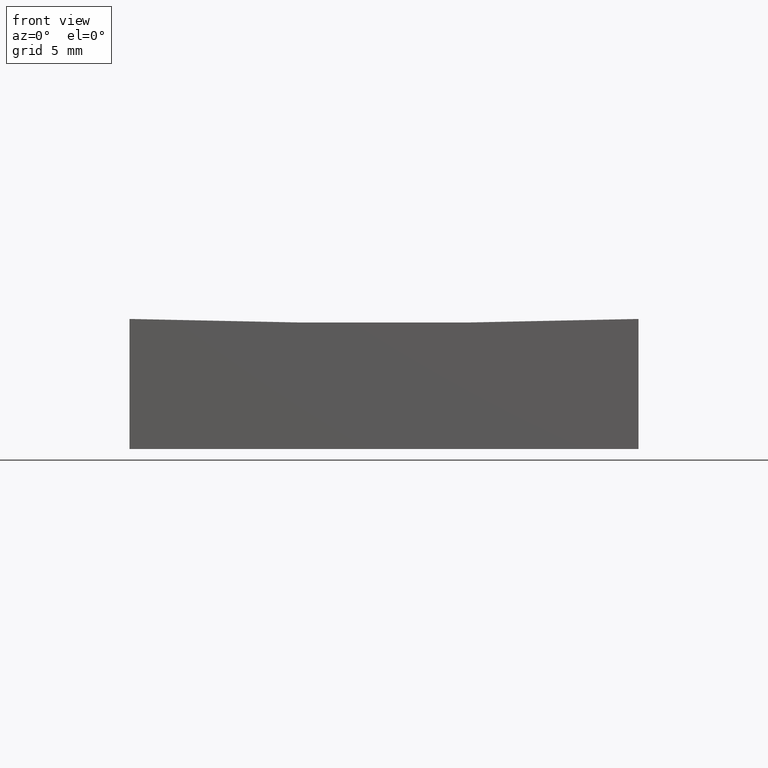
[diagram: clean part render]
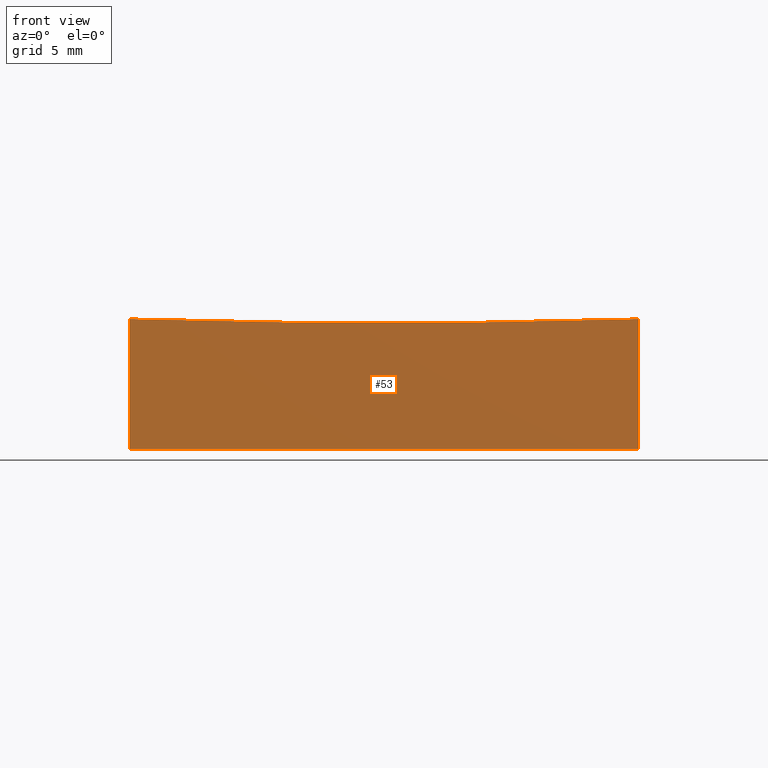
[diagram: same view with one face highlighted and labeled with its STEP entity id]
A machine part, front view. The second image highlights one B-rep face of the part: STEP entity #53.
In plain terms, the highlighted planar face has unit normal (0, 1, 0).
Its self-contained STEP definition (entity closure, byte-faithful):
#9 = ORIENTED_EDGE ( 'NONE', *, *, #27, .F. ) ;
#27 = EDGE_CURVE ( 'NONE', #134, #92, #188, .T. ) ;
#33 = CIRCLE ( 'NONE', #184, 399.8046397929869613 ) ;
#41 = DIRECTION ( 'NONE',  ( 0.0000000000000000000, -0.0000000000000000000, 1.000000000000000000 ) ) ;
#47 = DIRECTION ( 'NONE',  ( 0.0000000000000000000, 0.0000000000000000000, 1.000000000000000000 ) ) ;
#50 = ORIENTED_EDGE ( 'NONE', *, *, #132, .T. ) ;
#53 = ADVANCED_FACE ( 'NONE', ( #81 ), #125, .F. ) ;
#62 = CARTESIAN_POINT ( 'NONE',  ( -12.49999999999999645, -12.50000000000000000, 20.00000000000000000 ) ) ;
#64 = CARTESIAN_POINT ( 'NONE',  ( 12.50000000000000355, -12.50000000000000000, 20.00000000000000000 ) ) ;
#81 = FACE_OUTER_BOUND ( 'NONE', #248, .T. ) ;
#82 = EDGE_CURVE ( 'NONE', #177, #92, #250, .T. ) ;
#88 = VECTOR ( 'NONE', #109, 1000.000000000000000 ) ;
#90 = CARTESIAN_POINT ( 'NONE',  ( -12.49999999999999645, -12.50000000000000000, 20.00000000000000000 ) ) ;
#92 = VERTEX_POINT ( 'NONE', #104 ) ;
#102 = DIRECTION ( 'NONE',  ( 1.000000000000000000, 0.0000000000000000000, 0.0000000000000000000 ) ) ;
#104 = CARTESIAN_POINT ( 'NONE',  ( 12.50000000000000355, -12.50000000000000000, 0.0000000000000000000 ) ) ;
#109 = DIRECTION ( 'NONE',  ( -0.0000000000000000000, -0.0000000000000000000, -1.000000000000000000 ) ) ;
#112 = CARTESIAN_POINT ( 'NONE',  ( -12.49999999999999645, -12.50000000000000000, 0.0000000000000000000 ) ) ;
#114 = DIRECTION ( 'NONE',  ( -0.0000000000000000000, -0.0000000000000000000, -1.000000000000000000 ) ) ;
#116 = ORIENTED_EDGE ( 'NONE', *, *, #82, .T. ) ;
#125 = PLANE ( 'NONE',  #212 ) ;
#129 = LINE ( 'NONE', #90, #201 ) ;
#132 = EDGE_CURVE ( 'NONE', #134, #211, #33, .T. ) ;
#134 = VERTEX_POINT ( 'NONE', #172 ) ;
#137 = VECTOR ( 'NONE', #102, 1000.000000000000000 ) ;
#138 = CARTESIAN_POINT ( 'NONE',  ( -12.49999999999999645, -12.50000000000000000, 6.390815921355486040 ) ) ;
#144 = DIRECTION ( 'NONE',  ( 0.0000000000000000000, 1.000000000000000000, 0.0000000000000000000 ) ) ;
#150 = DIRECTION ( 'NONE',  ( 0.0000000000000000000, 1.000000000000000000, 0.0000000000000000000 ) ) ;
#162 = EDGE_CURVE ( 'NONE', #211, #177, #129, .T. ) ;
#172 = CARTESIAN_POINT ( 'NONE',  ( 12.50000000000000355, -12.50000000000000000, 6.390815921355486040 ) ) ;
#177 = VERTEX_POINT ( 'NONE', #112 ) ;
#184 = AXIS2_PLACEMENT_3D ( 'NONE', #242, #150, #47 ) ;
#188 = LINE ( 'NONE', #64, #88 ) ;
#201 = VECTOR ( 'NONE', #114, 1000.000000000000000 ) ;
#207 = ORIENTED_EDGE ( 'NONE', *, *, #162, .T. ) ;
#211 = VERTEX_POINT ( 'NONE', #138 ) ;
#212 = AXIS2_PLACEMENT_3D ( 'NONE', #62, #144, #41 ) ;
#216 = CARTESIAN_POINT ( 'NONE',  ( -12.49999999999999645, -12.50000000000000000, 0.0000000000000000000 ) ) ;
#242 = CARTESIAN_POINT ( 'NONE',  ( 4.972066004538253326E-14, -12.50000000000000000, 406.0000000000000000 ) ) ;
#248 = EDGE_LOOP ( 'NONE', ( #9, #50, #207, #116 ) ) ;
#250 = LINE ( 'NONE', #216, #137 ) ;